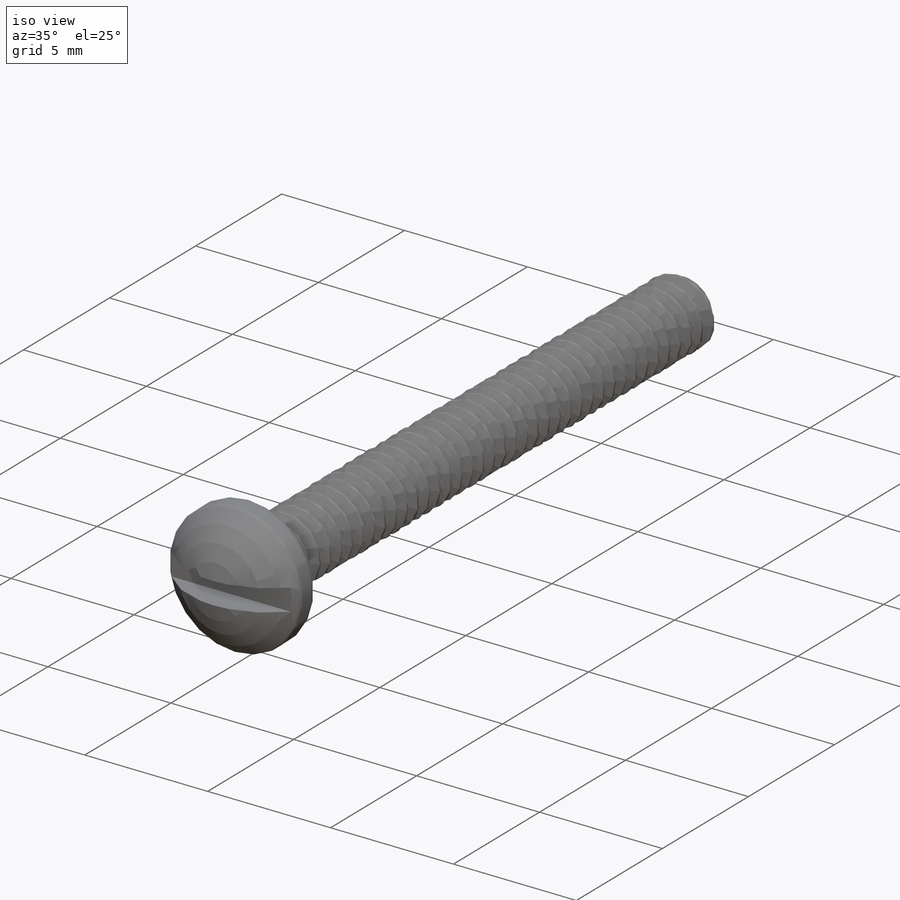
[diagram: iso view]
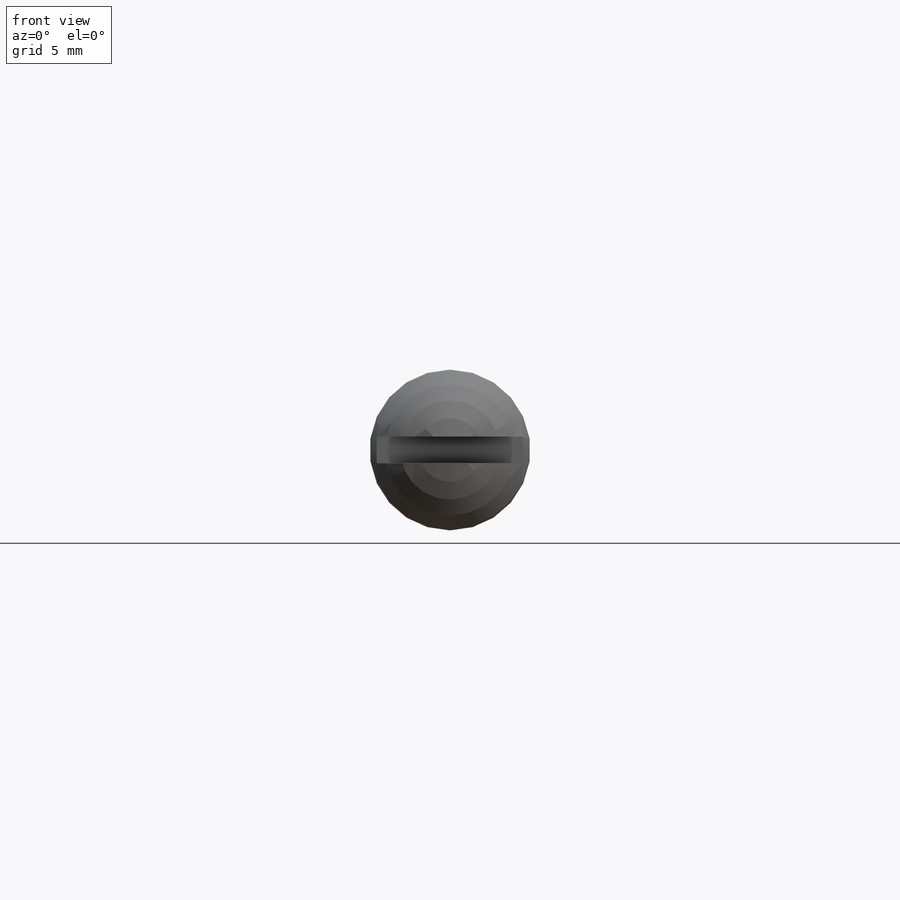
[diagram: front view]
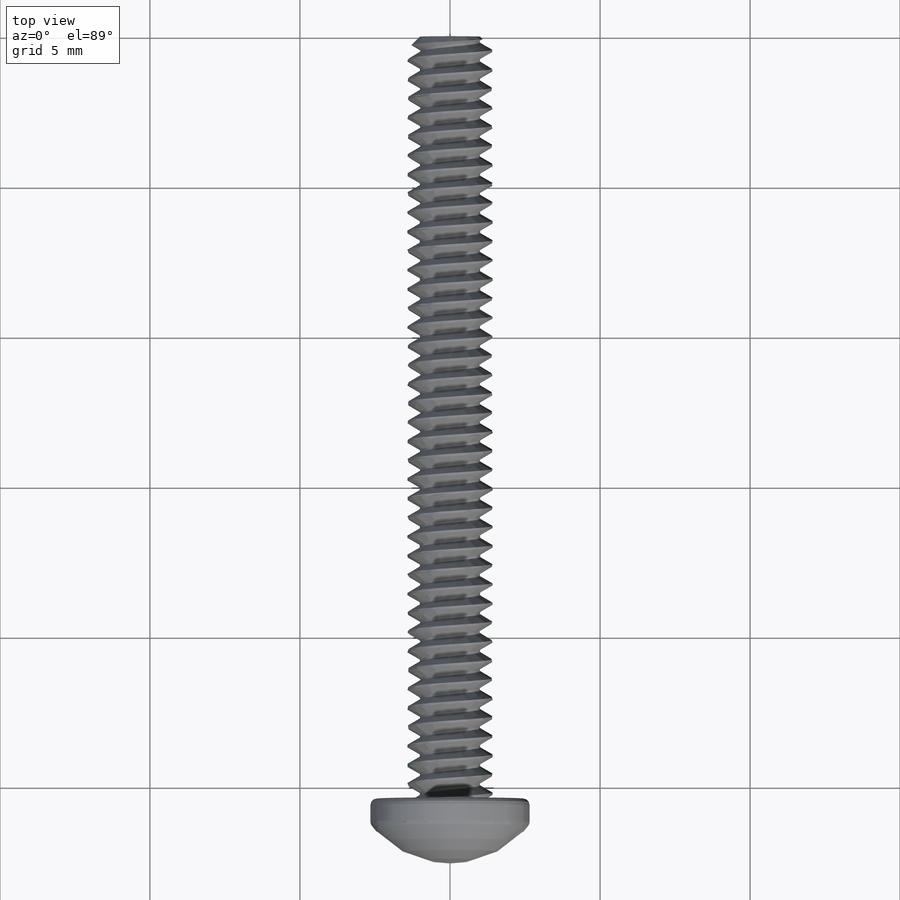
[diagram: top view]
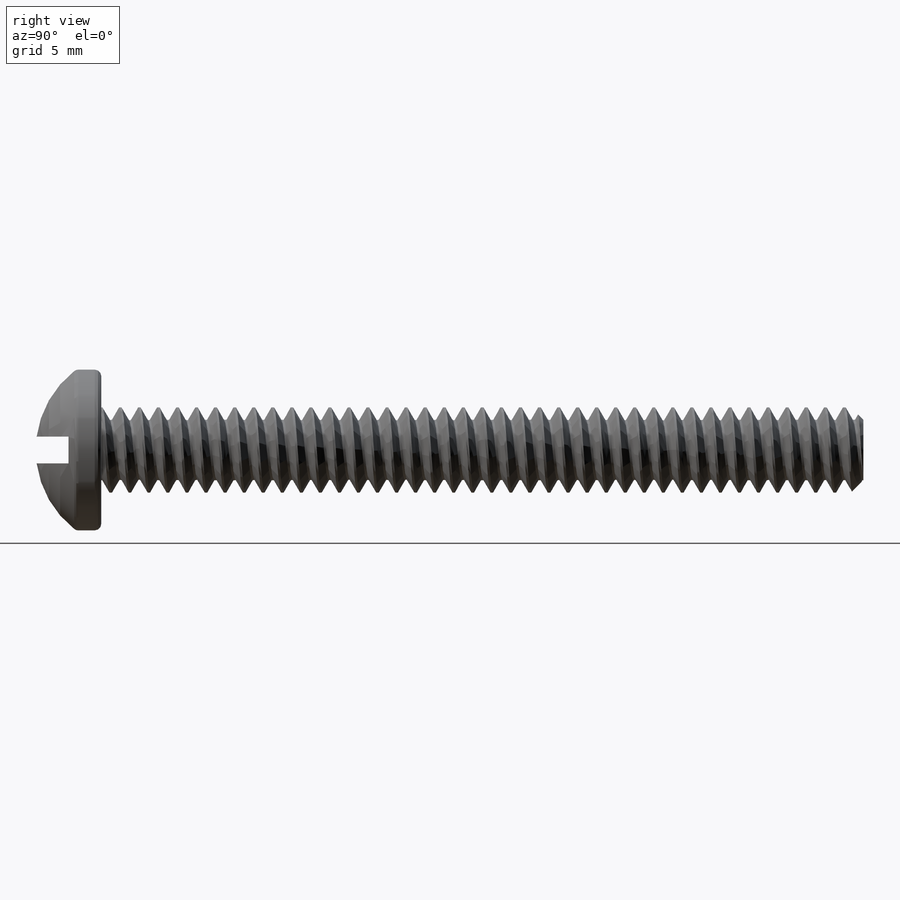
[diagram: right view]
SOLIDWORKS PART (.sldprt)
format: sldprt  version: not decoded by parser v0  size: 732,672 bytes
history: native  units: mm
features: sketch x10, cut_revolve x3, helix x2, revolve x2, sweep x2, material x1, plane x1 + 1 further entry (+10 scaffold rows collapsed)
feature tree (32):
  scaffold x10  (default folders/planes/origin — collapsed)
  material  "Material <not specified>"
  "Annotations"  RD1=5.3594mm
  sketch  "Sketch1"  dims[decimal equ=2.8448mm]
  helix  "Helix/Spiral1"  Pitch=28.575mm helix length=28.575mm pitch=0.635mm TPI=45
  sketch  "Sketch2"  dims[c1.D1=~1.278166mm c2.D1=60.0deg c2.D2=~2.687556mm c3.D2=30.0deg c3.D3=~0.079375mm c3.D4=0.3175mm]
  sketch  "Sketch3"  dims[D1=28.575mm]
  revolve  "Revolve1"  Angle=360deg
  sweep  "Sweep1"
  sketch  "Sketch6"  dims[D1=0.0mm]
  sketch  "Sketch7"  dims[D1=0.0mm]
  helix  "Helix/Spiral2"  Pitch=0.635mm
  sweep  "Sweep2"
  sketch  "Sketch4"  dims[c1.D1=2.54mm c1.D2=2.54mm c2.D2=45.0deg c2.D3=3.175mm]
  cut_revolve  "Cut-Revolve1"  Angle=360deg
  sketch  "Sketch10"  dims[screw length=25.4mm D1=50.8mm D2=12.7mm]
  cut_revolve  "Cut-Revolve2"  Angle=360deg
  sketch  "Sketch8"  dims[screw length=25.4mm head dia=5.3594mm head height=2.1844mm D1=25.4mm]
  revolve  "Revolve2"  Angle=360deg
  sketch  "Sketch11"  dims[c1.D1=~0.21844mm c1.D5=0.508mm c1.D2=0.635mm c1.D3=0.635mm c1.D4=0.635mm c2.D5=0.5461mm]
  cut_revolve  "Cut-Revolve3"  Angle=360deg
  plane  "Plane1"
  sketch  "Sketch12"  dims[c1.phillips dia=3.175mm c1.D2=~2.38125mm c2.D2=45.0deg c2.D3=0.508mm c2.D4=~2.38125mm c3.D4=22.5deg c3.slot width=1.016mm c3.phillips dia=4.7625mm c3.slot depth=1.0922mm c3.slot thickness=0.889mm c3.D6=1.0mm c3.D7=5.0mm]
decode coverage: 17 of 19 modeling features carry decoded parameters; 1 rows unclassified (native names shown)
note: ~ marks probable driven/reference dimensions
note: suppression state not decoded; provenance and decode notes live in map.json
